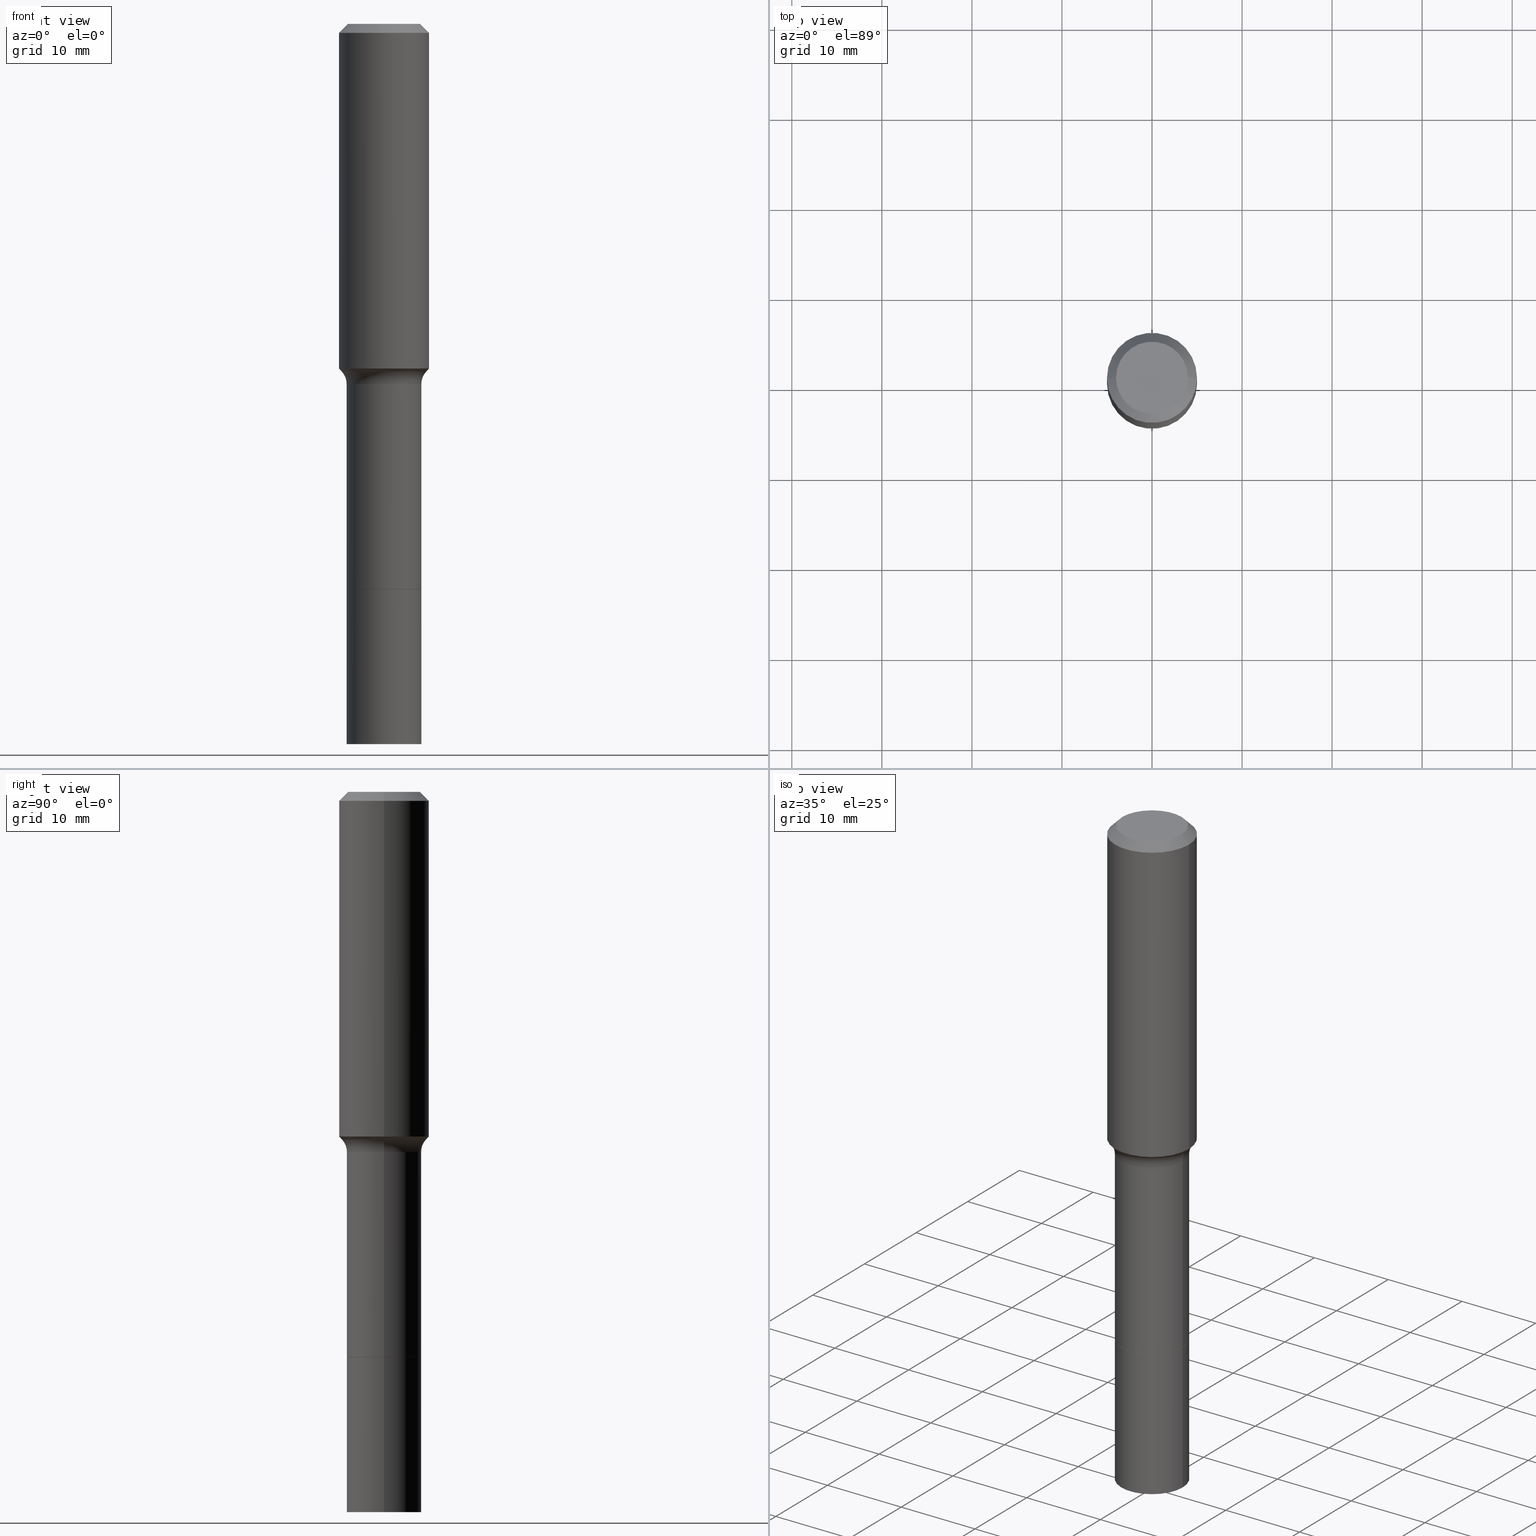
[diagram: canonical four-view strip — front | top / right | iso, engineering-drawing reading convention]
A machine part, canonical four-view strip (front | top / right | iso — engineering-drawing reading convention). The complete STEP part file that produces these views, byte-faithful:
ISO-10303-21;
HEADER;
FILE_DESCRIPTION (( 'STEP AP203' ),
    '1' );
FILE_NAME ('67130.STEP',
    '2025-04-01T15:28:40',
    ( '' ),
    ( '' ),
    'SwSTEP 2.0',
    'SolidWorks 2024',
    '' );
FILE_SCHEMA (( 'CONFIG_CONTROL_DESIGN' ));
ENDSEC;

DATA;
#1 = ORGANIZATION ( 'UNSPECIFIED', 'UNSPECIFIED', '' ) ;
#2 = DIRECTION ( 'NONE',  ( -2.445468806185136597E-29, 3.491481338843145583E-15, 1.000000000000000000 ) ) ;
#3 = PRODUCT_DEFINITION ( 'UNKNOWN', '', #8, #282 ) ;
#4 = DIRECTION ( 'NONE',  ( 1.000000000000000000, -6.982962677686264344E-15, 0.000000000000000000 ) ) ;
#5 = FACE_OUTER_BOUND ( 'NONE', #222, .T. ) ;
#6 = ORIENTED_EDGE ( 'NONE', *, *, #110, .T. ) ;
#7 = CLOSED_SHELL ( 'NONE', ( #353, #421, #197, #395, #267, #251, #262, #366, #128, #79, #61, #139, #226, #36 ) ) ;
#8 = PRODUCT_DEFINITION_FORMATION_WITH_SPECIFIED_SOURCE ( 'ANY', '', #337, .NOT_KNOWN. ) ;
#9 = CARTESIAN_POINT ( 'NONE',  ( -0.1633999999999999897, -5.903461936716274512E-15, -2.472100000000000186 ) ) ;
#10 = EDGE_LOOP ( 'NONE', ( #24, #100, #6, #247 ) ) ;
#11 = LINE ( 'NONE', #53, #236 ) ;
#12 = DIRECTION ( 'NONE',  ( 0.7071067811864267805, -2.468850131080992517E-15, 0.7071067811866682540 ) ) ;
#13 = CARTESIAN_POINT ( 'NONE',  ( 3.850635182219116347E-29, -5.497686516142417553E-15, -1.574600000000000222 ) ) ;
#14 = ORIENTED_EDGE ( 'NONE', *, *, #329, .F. ) ;
#15 = DIRECTION ( 'NONE',  ( 0.7071067811865453523, -7.319954787623248157E-15, -0.7071067811865496822 ) ) ;
#16 = ORIENTED_EDGE ( 'NONE', *, *, #429, .F. ) ;
#17 = CIRCLE ( 'NONE', #241, 0.1848917038704662730 ) ;
#18 = CARTESIAN_POINT ( 'NONE',  ( 9.627810689950945397E-31, -1.374596203102555315E-16, -0.03937000000000025896 ) ) ;
#19 = ORIENTED_EDGE ( 'NONE', *, *, #314, .F. ) ;
#20 = PERSON ( 'UNSPECIFIED', 'UNSPECIFIED', 'UNSPECIFIED', ('UNSPECIFIED'), ('UNSPECIFIED'), ('UNSPECIFIED') ) ;
#21 = EDGE_CURVE ( 'NONE', #69, #219, #351, .T. ) ;
#22 = APPROVAL_DATE_TIME ( #507, #244 ) ;
#23 = ORIENTED_EDGE ( 'NONE', *, *, #509, .T. ) ;
#24 = ORIENTED_EDGE ( 'NONE', *, *, #384, .F. ) ;
#25 = CIRCLE ( 'NONE', #317, 0.1633999999999998787 ) ;
#26 = SECURITY_CLASSIFICATION ( '', '', #423 ) ;
#27 = DIRECTION ( 'NONE',  ( 1.000000000000000000, -6.982962677686264344E-15, 0.000000000000000000 ) ) ;
#28 = ORIENTED_EDGE ( 'NONE', *, *, #476, .F. ) ;
#29 = DIRECTION ( 'NONE',  ( 1.000000000000000000, -6.982962677686266711E-15, 0.000000000000000000 ) ) ;
#30 = CIRCLE ( 'NONE', #377, 0.1968500000000000250 ) ;
#31 = LINE ( 'NONE', #270, #411 ) ;
#32 = AXIS2_PLACEMENT_3D ( 'NONE', #490, #130, #294 ) ;
#33 = DIRECTION ( 'NONE',  ( -2.445468806185136597E-29, 3.491481338843145583E-15, 1.000000000000000000 ) ) ;
#34 = CYLINDRICAL_SURFACE ( 'NONE', #223, 0.1968500000000001082 ) ;
#35 = CARTESIAN_POINT ( 'NONE',  ( 0.1633999999999999897, -9.772307119288075275E-15, -2.472100000000000186 ) ) ;
#36 = ADVANCED_FACE ( 'NONE', ( #298 ), #99, .T. ) ;
#37 = TOROIDAL_SURFACE ( 'NONE', #386, 0.2433999999999999220, 0.07999999999999998779 ) ;
#38 = CARTESIAN_POINT ( 'NONE',  ( 3.850635182219116347E-29, -5.497686516142417553E-15, -1.574600000000000222 ) ) ;
#39 = ORIENTED_EDGE ( 'NONE', *, *, #206, .T. ) ;
#40 = DIRECTION ( 'NONE',  ( 1.000000000000000000, -6.982962677686262766E-15, 0.000000000000000000 ) ) ;
#41 = VERTEX_POINT ( 'NONE', #422 ) ;
#42 = CARTESIAN_POINT ( 'NONE',  ( 0.1628999999999999893, -9.770561378618654560E-15, -2.472600000000000353 ) ) ;
#43 = DIRECTION ( 'NONE',  ( 1.000000000000000000, -6.982962677686265922E-15, 0.000000000000000000 ) ) ;
#44 = AXIS2_PLACEMENT_3D ( 'NONE', #382, #506, #467 ) ;
#45 = CARTESIAN_POINT ( 'NONE',  ( 0.1848917038704662730, -6.598283619901317980E-15, -1.520040131195000255 ) ) ;
#46 = LOCAL_TIME ( 11, 28, 40.00000000000000000, #469 ) ;
#47 = EDGE_CURVE ( 'NONE', #69, #426, #464, .T. ) ;
#48 = DIRECTION ( 'NONE',  ( 1.000000000000000000, -6.982962677686268288E-15, 4.883557194083114583E-29 ) ) ;
#49 = ORIENTED_EDGE ( 'NONE', *, *, #206, .F. ) ;
#50 = DIRECTION ( 'NONE',  ( -2.445468806185136597E-29, 3.491481338843145583E-15, 1.000000000000000000 ) ) ;
#51 = DIRECTION ( 'NONE',  ( 0.6819983600624961451, -2.208861293262451743E-15, 0.7313537016191726803 ) ) ;
#52 = ORIENTED_EDGE ( 'NONE', *, *, #87, .F. ) ;
#53 = CARTESIAN_POINT ( 'NONE',  ( -0.1848917038704662730, -3.993457181485356184E-15, -1.520040131195000255 ) ) ;
#54 = FACE_OUTER_BOUND ( 'NONE', #364, .T. ) ;
#55 = ORIENTED_EDGE ( 'NONE', *, *, #429, .T. ) ;
#56 = DIMENSIONAL_EXPONENTS ( 1.000000000000000000, 0.000000000000000000, 0.000000000000000000, 0.000000000000000000, 0.000000000000000000, 0.000000000000000000, 0.000000000000000000 ) ;
#57 = CC_DESIGN_PERSON_AND_ORGANIZATION_ASSIGNMENT ( #309, #347, ( #26 ) ) ;
#58 = CIRCLE ( 'NONE', #253, 0.07999999999999996003 ) ;
#59 = CALENDAR_DATE ( 2025, 1, 4 ) ;
#60 = ORIENTED_EDGE ( 'NONE', *, *, #513, .T. ) ;
#61 = ADVANCED_FACE ( 'NONE', ( #189 ), #124, .T. ) ;
#62 = SHAPE_DEFINITION_REPRESENTATION ( #381, #162 ) ;
#63 = ORIENTED_EDGE ( 'NONE', *, *, #72, .F. ) ;
#64 = EDGE_CURVE ( 'NONE', #209, #143, #324, .T. ) ;
#65 = COORDINATED_UNIVERSAL_TIME_OFFSET ( 5, 0, .BEHIND. ) ;
#66 = ORIENTED_EDGE ( 'NONE', *, *, #154, .T. ) ;
#67 = APPROVAL_PERSON_ORGANIZATION ( #465, #244, #101 ) ;
#68 = PERSON_AND_ORGANIZATION_ROLE ( 'design_owner' ) ;
#69 = VERTEX_POINT ( 'NONE', #35 ) ;
#70 = PLANE ( 'NONE',  #394 ) ;
#71 = DIRECTION ( 'NONE',  ( -2.445468806185136597E-29, 3.491481338843145583E-15, 1.000000000000000000 ) ) ;
#72 = EDGE_CURVE ( 'NONE', #508, #172, #439, .T. ) ;
#73 = FACE_OUTER_BOUND ( 'NONE', #228, .T. ) ;
#74 = DIRECTION ( 'NONE',  ( -2.445468806185136597E-29, 3.491481338843145583E-15, 1.000000000000000000 ) ) ;
#75 = CARTESIAN_POINT ( 'NONE',  ( 0.1633999999999998787, -6.638702617676352518E-15, -1.574600000000000222 ) ) ;
#76 = EDGE_CURVE ( 'NONE', #41, #496, #292, .T. ) ;
#77 = FACE_OUTER_BOUND ( 'NONE', #460, .T. ) ;
#78 = CALENDAR_DATE ( 2025, 1, 4 ) ;
#79 = ADVANCED_FACE ( 'NONE', ( #77 ), #150, .T. ) ;
#80 = DIRECTION ( 'NONE',  ( 1.000000000000000000, -6.982962677686265922E-15, 0.000000000000000000 ) ) ;
#81 = CLOSED_SHELL ( 'NONE', ( #157, #415, #305, #179 ) ) ;
#82 = CIRCLE ( 'NONE', #379, 0.07999999999999996003 ) ;
#83 = DIRECTION ( 'NONE',  ( -2.445468806185136597E-29, 3.491481338843145583E-15, 1.000000000000000000 ) ) ;
#84 = VERTEX_POINT ( 'NONE', #114 ) ;
#85 = CARTESIAN_POINT ( 'NONE',  ( 0.2433999999999999220, -7.197339631891254170E-15, -1.574600000000000222 ) ) ;
#86 = VERTEX_POINT ( 'NONE', #443 ) ;
#87 = EDGE_CURVE ( 'NONE', #279, #406, #30, .T. ) ;
#88 = DIRECTION ( 'NONE',  ( -6.982962677686266711E-15, -1.000000000000000000, 3.491481338843145583E-15 ) ) ;
#89 = APPROVAL_PERSON_ORGANIZATION ( #190, #433, #284 ) ;
#90 = CC_DESIGN_SECURITY_CLASSIFICATION ( #26, ( #8 ) ) ;
#91 = DIRECTION ( 'NONE',  ( 1.000000000000000000, -6.982962677686266711E-15, 4.876176775795935793E-29 ) ) ;
#92 = CARTESIAN_POINT ( 'NONE',  ( -0.1628999999999999893, -7.472913414696247881E-15, -2.472600000000000353 ) ) ;
#93 = CARTESIAN_POINT ( 'NONE',  ( 6.046666170173369648E-29, -8.633036758423563392E-15, -2.472600000000000353 ) ) ;
#94 = DIRECTION ( 'NONE',  ( -1.000000000000000000, 7.105427357601001859E-15, 0.000000000000000000 ) ) ;
#95 = CARTESIAN_POINT ( 'NONE',  ( 6.046666170173369648E-29, -8.633036758423563392E-15, -2.472600000000000353 ) ) ;
#96 = DIRECTION ( 'NONE',  ( -2.445468806185136597E-29, 3.491481338843145583E-15, 1.000000000000000000 ) ) ;
#97 = DIRECTION ( 'NONE',  ( -2.445468806185136597E-29, 3.491481338843145583E-15, 1.000000000000000000 ) ) ;
#98 = CARTESIAN_POINT ( 'NONE',  ( 0.1634000000000001007, -9.774052859957499145E-15, -2.472600000000000353 ) ) ;
#99 = CONICAL_SURFACE ( 'NONE', #301, 0.1628999999999999893, 0.7853981633972775267 ) ;
#100 = ORIENTED_EDGE ( 'NONE', *, *, #290, .F. ) ;
#101 = APPROVAL_ROLE ( '' ) ;
#102 = EDGE_LOOP ( 'NONE', ( #332, #60, #145, #349 ) ) ;
#103 = COORDINATED_UNIVERSAL_TIME_OFFSET ( 5, 0, .BEHIND. ) ;
#104 = EDGE_LOOP ( 'NONE', ( #340, #257, #330, #383 ) ) ;
#105 = AXIS2_PLACEMENT_3D ( 'NONE', #438, #33, #479 ) ;
#106 = DATE_AND_TIME ( #59, #318 ) ;
#107 = AXIS2_PLACEMENT_3D ( 'NONE', #160, #50, #462 ) ;
#108 = APPROVAL_DATE_TIME ( #240, #175 ) ;
#109 = CARTESIAN_POINT ( 'NONE',  ( 3.717210724986936016E-29, -5.307191752360030282E-15, -1.520040131195000255 ) ) ;
#110 = EDGE_CURVE ( 'NONE', #172, #406, #512, .T. ) ;
#111 = DIRECTION ( 'NONE',  ( -2.445468806185136597E-29, 3.491481338843145583E-15, 1.000000000000000000 ) ) ;
#112 = CARTESIAN_POINT ( 'NONE',  ( 0.1968500000000001082, -1.374596203102542397E-15, 9.598753983154305062E-30 ) ) ;
#113 =( NAMED_UNIT ( * ) PLANE_ANGLE_UNIT ( ) SI_UNIT ( $, .RADIAN. ) );
#114 = CARTESIAN_POINT ( 'NONE',  ( -0.1633999999999998787, -5.903461936716276090E-15, -1.574600000000000222 ) ) ;
#115 = APPLICATION_CONTEXT ( 'configuration controlled 3d designs of mechanical parts and assemblies' ) ;
#116 = CIRCLE ( 'NONE', #167, 0.1968500000000001915 ) ;
#117 = CONICAL_SURFACE ( 'NONE', #412, 0.1848917038704662730, 0.7504915783575585309 ) ;
#118 = DIRECTION ( 'NONE',  ( 1.000000000000000000, -6.982962677686268288E-15, 0.000000000000000000 ) ) ;
#119 = AXIS2_PLACEMENT_3D ( 'NONE', #402, #451, #4 ) ;
#120 = FACE_OUTER_BOUND ( 'NONE', #135, .T. ) ;
#121 = DIRECTION ( 'NONE',  ( -2.445468806185136597E-29, 3.491481338843145583E-15, 1.000000000000000000 ) ) ;
#122 = PERSON_AND_ORGANIZATION_ROLE ( 'creator' ) ;
#123 = DIRECTION ( 'NONE',  ( 1.000000000000000000, -6.982962677686265922E-15, 4.876176775795935793E-29 ) ) ;
#124 = CONICAL_SURFACE ( 'NONE', #424, 0.1968500000000000250, 0.7853981633974452814 ) ;
#125 = ORIENTED_EDGE ( 'NONE', *, *, #87, .T. ) ;
#126 = VECTOR ( 'NONE', #51, 39.37007874015748143 ) ;
#127 = CARTESIAN_POINT ( 'NONE',  ( 0.000000000000000000, 0.000000000000000000, 0.000000000000000000 ) ) ;
#128 = ADVANCED_FACE ( 'NONE', ( #73 ), #229, .T. ) ;
#129 = ORIENTED_EDGE ( 'NONE', *, *, #468, .F. ) ;
#130 = DIRECTION ( 'NONE',  ( -2.445468806185136597E-29, 3.491481338843145583E-15, 1.000000000000000000 ) ) ;
#131 = FACE_OUTER_BOUND ( 'NONE', #149, .T. ) ;
#132 = EDGE_LOOP ( 'NONE', ( #66, #39, #52, #16 ) ) ;
#133 = DIRECTION ( 'NONE',  ( 1.000000000000000000, -6.982962677686264344E-15, 0.000000000000000000 ) ) ;
#134 = CARTESIAN_POINT ( 'NONE',  ( 0.1628999999999999893, -9.770561378618654560E-15, -2.472600000000000353 ) ) ;
#135 = EDGE_LOOP ( 'NONE', ( #191, #466 ) ) ;
#136 = VECTOR ( 'NONE', #331, 39.37007874015748143 ) ;
#137 = AXIS2_PLACEMENT_3D ( 'NONE', #18, #218, #339 ) ;
#138 = LINE ( 'NONE', #98, #487 ) ;
#139 = ADVANCED_FACE ( 'NONE', ( #120 ), #70, .F. ) ;
#140 = CARTESIAN_POINT ( 'NONE',  ( 3.717210724986936016E-29, -5.307191752360030282E-15, -1.520040131195000255 ) ) ;
#141 = ORIENTED_EDGE ( 'NONE', *, *, #185, .F. ) ;
#142 = CARTESIAN_POINT ( 'NONE',  ( -0.1968500000000000250, -1.301235451839561360E-15, -0.03937000000000025896 ) ) ;
#143 = VERTEX_POINT ( 'NONE', #238 ) ;
#144 = CARTESIAN_POINT ( 'NONE',  ( 3.717210724986936016E-29, -5.307191752360030282E-15, -1.520040131195000255 ) ) ;
#145 = ORIENTED_EDGE ( 'NONE', *, *, #154, .F. ) ;
#146 = AXIS2_PLACEMENT_3D ( 'NONE', #502, #97, #29 ) ;
#147 = AXIS2_PLACEMENT_3D ( 'NONE', #453, #163, #369 ) ;
#148 = DIRECTION ( 'NONE',  ( -2.445468806185136597E-29, 3.491481338843145583E-15, 1.000000000000000000 ) ) ;
#149 = EDGE_LOOP ( 'NONE', ( #414, #404, #266, #141 ) ) ;
#150 = CYLINDRICAL_SURFACE ( 'NONE', #263, 0.1968500000000001082 ) ;
#151 = AXIS2_PLACEMENT_3D ( 'NONE', #516, #350, #155 ) ;
#152 = AXIS2_PLACEMENT_3D ( 'NONE', #144, #96, #299 ) ;
#153 = DIRECTION ( 'NONE',  ( 1.000000000000000000, -6.982962677686265922E-15, 0.000000000000000000 ) ) ;
#154 = EDGE_CURVE ( 'NONE', #143, #209, #116, .T. ) ;
#155 = DIRECTION ( 'NONE',  ( 1.000000000000000000, -6.982962677686261189E-15, 0.000000000000000000 ) ) ;
#156 = CARTESIAN_POINT ( 'NONE',  ( 7.702248551960706711E-29, -1.099676962482037231E-14, -3.149600000000000399 ) ) ;
#157 = ADVANCED_FACE ( 'NONE', ( #398 ), #472, .T. ) ;
#158 = AXIS2_PLACEMENT_3D ( 'NONE', #207, #363, #48 ) ;
#159 = LINE ( 'NONE', #319, #136 ) ;
#160 = CARTESIAN_POINT ( 'NONE',  ( 6.046666170173369648E-29, -8.633036758423563392E-15, -2.472600000000000353 ) ) ;
#161 = CYLINDRICAL_SURFACE ( 'NONE', #188, 0.1634000000000001007 ) ;
#162 = ADVANCED_BREP_SHAPE_REPRESENTATION ( '67130', ( #481, #483, #505 ), #335 ) ;
#163 = DIRECTION ( 'NONE',  ( -2.445468806185136597E-29, 3.491481338843145583E-15, 1.000000000000000000 ) ) ;
#164 = EDGE_LOOP ( 'NONE', ( #19, #343, #249, #186 ) ) ;
#165 = EDGE_CURVE ( 'NONE', #219, #84, #441, .T. ) ;
#166 = DIRECTION ( 'NONE',  ( -2.438088387897960049E-29, 3.491481338843145188E-15, 1.000000000000000000 ) ) ;
#167 = AXIS2_PLACEMENT_3D ( 'NONE', #239, #437, #517 ) ;
#168 = ORIENTED_EDGE ( 'NONE', *, *, #173, .T. ) ;
#169 = CIRCLE ( 'NONE', #312, 0.1633999999999999897 ) ;
#170 = CARTESIAN_POINT ( 'NONE',  ( 6.045443435770276846E-29, -8.631291017754141099E-15, -2.472100000000000186 ) ) ;
#171 = PLANE ( 'NONE',  #178 ) ;
#172 = VERTEX_POINT ( 'NONE', #518 ) ;
#173 = EDGE_CURVE ( 'NONE', #496, #268, #31, .T. ) ;
#174 = DIRECTION ( 'NONE',  ( -2.445468806185136877E-29, 3.491481338843145188E-15, 1.000000000000000000 ) ) ;
#175 = APPROVAL ( #203, 'UNSPECIFIED' ) ;
#176 = DIRECTION ( 'NONE',  ( 7.105427357601001859E-15, 1.000000000000000000, -3.491481338843145583E-15 ) ) ;
#177 = ORIENTED_EDGE ( 'NONE', *, *, #504, .T. ) ;
#178 = AXIS2_PLACEMENT_3D ( 'NONE', #449, #166, #123 ) ;
#179 = ADVANCED_FACE ( 'NONE', ( #202 ), #192, .F. ) ;
#180 = DIRECTION ( 'NONE',  ( -1.000000000000000000, 6.982962677686265922E-15, -4.876176775795935793E-29 ) ) ;
#181 = EDGE_LOOP ( 'NONE', ( #23, #177, #288, #323 ) ) ;
#182 = UNCERTAINTY_MEASURE_WITH_UNIT (LENGTH_MEASURE( 1.000000000000000082E-05 ), #220, 'distance_accuracy_value', 'NONE');
#183 = ORIENTED_EDGE ( 'NONE', *, *, #165, .T. ) ;
#184 = DATE_TIME_ROLE ( 'classification_date' ) ;
#185 = EDGE_CURVE ( 'NONE', #268, #227, #475, .T. ) ;
#186 = ORIENTED_EDGE ( 'NONE', *, *, #358, .F. ) ;
#187 = AXIS2_PLACEMENT_3D ( 'NONE', #237, #474, #196 ) ;
#188 = AXIS2_PLACEMENT_3D ( 'NONE', #286, #328, #361 ) ;
#189 = FACE_OUTER_BOUND ( 'NONE', #10, .T. ) ;
#190 = PERSON_AND_ORGANIZATION ( #20, #1 ) ;
#191 = ORIENTED_EDGE ( 'NONE', *, *, #290, .T. ) ;
#192 = PLANE ( 'NONE',  #187 ) ;
#193 = EDGE_CURVE ( 'NONE', #426, #84, #25, .T. ) ;
#194 = CIRCLE ( 'NONE', #152, 0.1848917038704662730 ) ;
#195 = DATE_TIME_ROLE ( 'creation_date' ) ;
#196 = DIRECTION ( 'NONE',  ( -1.000000000000000000, 6.982962677686265922E-15, -4.876176775795935793E-29 ) ) ;
#197 = ADVANCED_FACE ( 'NONE', ( #397 ), #34, .T. ) ;
#198 = CARTESIAN_POINT ( 'NONE',  ( 0.000000000000000000, 0.000000000000000000, 0.000000000000000000 ) ) ;
#199 = DIRECTION ( 'NONE',  ( 1.000000000000000000, -6.982962677686266711E-15, 4.876176775795935793E-29 ) ) ;
#200 = PRODUCT_RELATED_PRODUCT_CATEGORY ( 'detail', '', ( #337 ) ) ;
#201 = CIRCLE ( 'NONE', #32, 0.1628999999999999893 ) ;
#202 = FACE_OUTER_BOUND ( 'NONE', #417, .T. ) ;
#203 = APPROVAL_STATUS ( 'not_yet_approved' ) ;
#204 = DIRECTION ( 'NONE',  ( 1.000000000000000000, -6.982962677686266711E-15, 4.876176775795935793E-29 ) ) ;
#205 = ORIENTED_EDGE ( 'NONE', *, *, #375, .F. ) ;
#206 = EDGE_CURVE ( 'NONE', #209, #406, #159, .T. ) ;
#207 = CARTESIAN_POINT ( 'NONE',  ( 3.850635182219116347E-29, -5.497686516142417553E-15, -1.574600000000000222 ) ) ;
#208 = APPLICATION_PROTOCOL_DEFINITION ( 'international standard', 'config_control_design', 1994, #115 ) ;
#209 = VERTEX_POINT ( 'NONE', #372 ) ;
#210 = LINE ( 'NONE', #410, #269 ) ;
#211 = DIRECTION ( 'NONE',  ( -2.445468806185136597E-29, 3.491481338843145583E-15, 1.000000000000000000 ) ) ;
#212 = ORIENTED_EDGE ( 'NONE', *, *, #504, .F. ) ;
#213 = CIRCLE ( 'NONE', #359, 0.1968500000000000250 ) ;
#214 = CARTESIAN_POINT ( 'NONE',  ( 0.1574800000000000089, -1.284169937930321189E-15, 3.855188123724205385E-18 ) ) ;
#215 = DIRECTION ( 'NONE',  ( -2.445468806185136597E-29, 3.491481338843145583E-15, 1.000000000000000000 ) ) ;
#216 = ORIENTED_EDGE ( 'NONE', *, *, #454, .T. ) ;
#217 = DIRECTION ( 'NONE',  ( -0.6819983600624961451, 7.399397606724278688E-15, 0.7313537016191726803 ) ) ;
#218 = DIRECTION ( 'NONE',  ( 2.445468806185136597E-29, -3.491481338843145583E-15, -1.000000000000000000 ) ) ;
#219 = VERTEX_POINT ( 'NONE', #9 ) ;
#220 =( CONVERSION_BASED_UNIT ( 'INCH', #419 ) LENGTH_UNIT ( ) NAMED_UNIT ( #56 ) );
#221 = CARTESIAN_POINT ( 'NONE',  ( 0.1968500000000000250, -1.487948651171581601E-15, -0.03937000000000025896 ) ) ;
#222 = EDGE_LOOP ( 'NONE', ( #389, #362 ) ) ;
#223 = AXIS2_PLACEMENT_3D ( 'NONE', #198, #74, #199 ) ;
#224 = LOCAL_TIME ( 11, 28, 40.00000000000000000, #348 ) ;
#225 = ORIENTED_EDGE ( 'NONE', *, *, #513, .F. ) ;
#226 = ADVANCED_FACE ( 'NONE', ( #5 ), #171, .F. ) ;
#227 = VERTEX_POINT ( 'NONE', #482 ) ;
#228 = EDGE_LOOP ( 'NONE', ( #225, #450, #308, #260 ) ) ;
#229 = CONICAL_SURFACE ( 'NONE', #447, 0.1848917038704662730, 0.7504915783575585309 ) ;
#230 = CIRCLE ( 'NONE', #401, 0.1633999999999998787 ) ;
#231 = EDGE_CURVE ( 'NONE', #373, #69, #495, .T. ) ;
#232 = ORIENTED_EDGE ( 'NONE', *, *, #110, .F. ) ;
#233 = DIRECTION ( 'NONE',  ( 1.000000000000000000, -6.982962677686268288E-15, 0.000000000000000000 ) ) ;
#234 = CALENDAR_DATE ( 2025, 1, 4 ) ;
#235 = CARTESIAN_POINT ( 'NONE',  ( -0.1633999999999999619, 1.161026830232003433E-15, -8.037539937476514246E-30 ) ) ;
#236 = VECTOR ( 'NONE', #217, 39.37007874015748143 ) ;
#237 = CARTESIAN_POINT ( 'NONE',  ( 6.046666170173369648E-29, -8.633036758423563392E-15, -2.472600000000000353 ) ) ;
#238 = CARTESIAN_POINT ( 'NONE',  ( 0.1968500000000001915, -6.637014237158927084E-15, -1.507216428600478775 ) ) ;
#239 = CARTESIAN_POINT ( 'NONE',  ( 3.685850760312237966E-29, -5.262418034056383898E-15, -1.507216428600478775 ) ) ;
#240 = DATE_AND_TIME ( #78, #46 ) ;
#241 = AXIS2_PLACEMENT_3D ( 'NONE', #245, #320, #445 ) ;
#242 = DIRECTION ( 'NONE',  ( 1.000000000000000000, -6.982962677686268288E-15, 4.883557194083114583E-29 ) ) ;
#243 = EDGE_LOOP ( 'NONE', ( #385, #492 ) ) ;
#244 = APPROVAL ( #387, 'UNSPECIFIED' ) ;
#245 = CARTESIAN_POINT ( 'NONE',  ( 3.717210724986936016E-29, -5.307191752360030282E-15, -1.520040131195000255 ) ) ;
#246 =( NAMED_UNIT ( * ) SI_UNIT ( $, .STERADIAN. ) SOLID_ANGLE_UNIT ( ) );
#247 = ORIENTED_EDGE ( 'NONE', *, *, #329, .T. ) ;
#248 = DIRECTION ( 'NONE',  ( -2.445468806185136597E-29, 3.491481338843145583E-15, 1.000000000000000000 ) ) ;
#249 = ORIENTED_EDGE ( 'NONE', *, *, #442, .T. ) ;
#250 = DIRECTION ( 'NONE',  ( -2.445468806185136597E-29, 3.491481338843145583E-15, 1.000000000000000000 ) ) ;
#251 = ADVANCED_FACE ( 'NONE', ( #291 ), #289, .T. ) ;
#252 = CARTESIAN_POINT ( 'NONE',  ( 0.000000000000000000, 0.000000000000000000, 0.000000000000000000 ) ) ;
#253 = AXIS2_PLACEMENT_3D ( 'NONE', #85, #88, #40 ) ;
#254 = ORIENTED_EDGE ( 'NONE', *, *, #185, .T. ) ;
#255 = CC_DESIGN_APPROVAL ( #244, ( #26 ) ) ;
#256 = FACE_OUTER_BOUND ( 'NONE', #164, .T. ) ;
#257 = ORIENTED_EDGE ( 'NONE', *, *, #375, .T. ) ;
#258 = CARTESIAN_POINT ( 'NONE',  ( -0.1634000000000001840, -8.653876361389961065E-15, -3.149600000000000399 ) ) ;
#259 = FACE_OUTER_BOUND ( 'NONE', #243, .T. ) ;
#260 = ORIENTED_EDGE ( 'NONE', *, *, #64, .F. ) ;
#261 = ORIENTED_EDGE ( 'NONE', *, *, #358, .T. ) ;
#262 = ADVANCED_FACE ( 'NONE', ( #409 ), #491, .T. ) ;
#263 = AXIS2_PLACEMENT_3D ( 'NONE', #275, #111, #355 ) ;
#264 = CIRCLE ( 'NONE', #448, 0.1628999999999999893 ) ;
#265 = DIRECTION ( 'NONE',  ( -2.445468806185136877E-29, 3.491481338843145188E-15, 1.000000000000000000 ) ) ;
#266 = ORIENTED_EDGE ( 'NONE', *, *, #476, .T. ) ;
#267 = ADVANCED_FACE ( 'NONE', ( #256 ), #37, .F. ) ;
#268 = VERTEX_POINT ( 'NONE', #326 ) ;
#269 = VECTOR ( 'NONE', #365, 39.37007874015748143 ) ;
#270 = CARTESIAN_POINT ( 'NONE',  ( -0.1634000000000001007, -7.472009928191558183E-15, -2.472600000000000353 ) ) ;
#271 = DIRECTION ( 'NONE',  ( -2.445468806185136597E-29, 3.491481338843145583E-15, 1.000000000000000000 ) ) ;
#272 = CARTESIAN_POINT ( 'NONE',  ( 3.850635182219116347E-29, -5.497686516142417553E-15, -1.574600000000000222 ) ) ;
#273 = TOROIDAL_SURFACE ( 'NONE', #158, 0.2433999999999999220, 0.07999999999999998779 ) ;
#274 = DIRECTION ( 'NONE',  ( -2.445468806185136597E-29, 3.491481338843145583E-15, 1.000000000000000000 ) ) ;
#275 = CARTESIAN_POINT ( 'NONE',  ( 0.000000000000000000, 0.000000000000000000, 0.000000000000000000 ) ) ;
#276 = LINE ( 'NONE', #112, #425 ) ;
#277 = CC_DESIGN_PERSON_AND_ORGANIZATION_ASSIGNMENT ( #307, #68, ( #337 ) ) ;
#278 = CARTESIAN_POINT ( 'NONE',  ( -9.427742298522567634E-47, 1.346031739168368355E-32, 3.855188123715870730E-18 ) ) ;
#279 = VERTEX_POINT ( 'NONE', #488 ) ;
#280 = EDGE_CURVE ( 'NONE', #485, #143, #360, .T. ) ;
#281 = DIRECTION ( 'NONE',  ( 1.000000000000000000, -6.982962677686265922E-15, 4.876223630392693006E-29 ) ) ;
#282 = DESIGN_CONTEXT ( 'detailed design', #356, 'design' ) ;
#283 = EDGE_LOOP ( 'NONE', ( #212, #341, #300, #205 ) ) ;
#284 = APPROVAL_ROLE ( '' ) ;
#285 = CC_DESIGN_DATE_AND_TIME_ASSIGNMENT ( #390, #195, ( #3 ) ) ;
#286 = CARTESIAN_POINT ( 'NONE',  ( 6.046666170173369648E-29, -8.633036758423563392E-15, -2.472600000000000353 ) ) ;
#287 = DIRECTION ( 'NONE',  ( 1.000000000000000000, 0.000000000000000000, 0.000000000000000000 ) ) ;
#288 = ORIENTED_EDGE ( 'NONE', *, *, #21, .F. ) ;
#289 = CYLINDRICAL_SURFACE ( 'NONE', #399, 0.1633999999999999619 ) ;
#290 = EDGE_CURVE ( 'NONE', #172, #508, #471, .T. ) ;
#291 = FACE_OUTER_BOUND ( 'NONE', #452, .T. ) ;
#292 = CIRCLE ( 'NONE', #486, 0.1634000000000001840 ) ;
#293 = CC_DESIGN_APPROVAL ( #433, ( #3 ) ) ;
#294 = DIRECTION ( 'NONE',  ( 1.000000000000000000, -6.982962677686264344E-15, 0.000000000000000000 ) ) ;
#295 = DIRECTION ( 'NONE',  ( -2.445468806185136597E-29, 3.491481338843145583E-15, 1.000000000000000000 ) ) ;
#296 = ORIENTED_EDGE ( 'NONE', *, *, #454, .F. ) ;
#297 = PLANE ( 'NONE',  #325 ) ;
#298 = FACE_OUTER_BOUND ( 'NONE', #283, .T. ) ;
#299 = DIRECTION ( 'NONE',  ( 1.000000000000000000, -6.982962677686268288E-15, 0.000000000000000000 ) ) ;
#300 = ORIENTED_EDGE ( 'NONE', *, *, #231, .T. ) ;
#301 = AXIS2_PLACEMENT_3D ( 'NONE', #95, #148, #27 ) ;
#302 = CIRCLE ( 'NONE', #119, 0.1634000000000001840 ) ;
#303 = PERSON_AND_ORGANIZATION_ROLE ( 'design_supplier' ) ;
#304 = CARTESIAN_POINT ( 'NONE',  ( 0.1633999999999999619, -1.141016101533935753E-15, 7.967672851650557527E-30 ) ) ;
#305 = ADVANCED_FACE ( 'NONE', ( #131 ), #161, .T. ) ;
#306 = CC_DESIGN_DATE_AND_TIME_ASSIGNMENT ( #106, #184, ( #26 ) ) ;
#307 = PERSON_AND_ORGANIZATION ( #20, #1 ) ;
#308 = ORIENTED_EDGE ( 'NONE', *, *, #280, .T. ) ;
#309 = PERSON_AND_ORGANIZATION ( #20, #1 ) ;
#310 = PERSON_AND_ORGANIZATION ( #20, #1 ) ;
#311 = DIRECTION ( 'NONE',  ( -1.000000000000000000, 6.982962677686265922E-15, -4.876176775795935793E-29 ) ) ;
#312 = AXIS2_PLACEMENT_3D ( 'NONE', #170, #215, #374 ) ;
#313 = DIRECTION ( 'NONE',  ( -0.7071067811865453523, 2.468850131082234184E-15, -0.7071067811865496822 ) ) ;
#314 = EDGE_CURVE ( 'NONE', #86, #485, #17, .T. ) ;
#315 = DIRECTION ( 'NONE',  ( 1.000000000000000000, -6.982962677686265922E-15, 0.000000000000000000 ) ) ;
#316 = DIRECTION ( 'NONE',  ( 1.000000000000000000, -6.982962677686264344E-15, 0.000000000000000000 ) ) ;
#317 = AXIS2_PLACEMENT_3D ( 'NONE', #272, #274, #315 ) ;
#318 = LOCAL_TIME ( 11, 28, 40.00000000000000000, #103 ) ;
#319 = CARTESIAN_POINT ( 'NONE',  ( -0.1968500000000001082, 1.398703375343757985E-15, -9.682923725166787881E-30 ) ) ;
#320 = DIRECTION ( 'NONE',  ( -2.445468806185136597E-29, 3.491481338843145583E-15, 1.000000000000000000 ) ) ;
#321 = PERSON_AND_ORGANIZATION_ROLE ( 'creator' ) ;
#322 = FACE_OUTER_BOUND ( 'NONE', #446, .T. ) ;
#323 = ORIENTED_EDGE ( 'NONE', *, *, #231, .F. ) ;
#324 = CIRCLE ( 'NONE', #146, 0.1968500000000001915 ) ;
#325 = AXIS2_PLACEMENT_3D ( 'NONE', #420, #376, #180 ) ;
#326 = CARTESIAN_POINT ( 'NONE',  ( -0.1633999999999999897, -8.653876361389962642E-15, -2.472600000000000353 ) ) ;
#327 = ORIENTED_EDGE ( 'NONE', *, *, #76, .T. ) ;
#328 = DIRECTION ( 'NONE',  ( -2.445468806185136597E-29, 3.491481338843145583E-15, 1.000000000000000000 ) ) ;
#329 = EDGE_CURVE ( 'NONE', #406, #279, #213, .T. ) ;
#330 = ORIENTED_EDGE ( 'NONE', *, *, #47, .T. ) ;
#331 = DIRECTION ( 'NONE',  ( -2.445468806185136877E-29, 3.491481338843145188E-15, 1.000000000000000000 ) ) ;
#332 = ORIENTED_EDGE ( 'NONE', *, *, #468, .T. ) ;
#333 = FACE_OUTER_BOUND ( 'NONE', #102, .T. ) ;
#334 = AXIS2_PLACEMENT_3D ( 'NONE', #357, #470, #233 ) ;
#335 =( GEOMETRIC_REPRESENTATION_CONTEXT ( 3 ) GLOBAL_UNCERTAINTY_ASSIGNED_CONTEXT ( ( #182 ) ) GLOBAL_UNIT_ASSIGNED_CONTEXT ( ( #220, #113, #246 ) ) REPRESENTATION_CONTEXT ( 'NONE', 'WORKASPACE' ) );
#336 = ORIENTED_EDGE ( 'NONE', *, *, #21, .T. ) ;
#337 = PRODUCT ( '67130', '67130', '', ( #405 ) ) ;
#338 = CC_DESIGN_PERSON_AND_ORGANIZATION_ASSIGNMENT ( #436, #321, ( #3 ) ) ;
#339 = DIRECTION ( 'NONE',  ( -1.000000000000000000, 6.982962677686265922E-15, 0.000000000000000000 ) ) ;
#340 = ORIENTED_EDGE ( 'NONE', *, *, #165, .F. ) ;
#341 = ORIENTED_EDGE ( 'NONE', *, *, #493, .T. ) ;
#342 = EDGE_CURVE ( 'NONE', #496, #41, #302, .T. ) ;
#343 = ORIENTED_EDGE ( 'NONE', *, *, #392, .T. ) ;
#344 = VECTOR ( 'NONE', #393, 39.37007874015748143 ) ;
#345 = AXIS2_PLACEMENT_3D ( 'NONE', #252, #248, #91 ) ;
#346 = DIRECTION ( 'NONE',  ( -1.000000000000000000, 6.982962677686265922E-15, 0.000000000000000000 ) ) ;
#347 = PERSON_AND_ORGANIZATION_ROLE ( 'classification_officer' ) ;
#348 = COORDINATED_UNIVERSAL_TIME_OFFSET ( 5, 0, .BEHIND. ) ;
#349 = ORIENTED_EDGE ( 'NONE', *, *, #280, .F. ) ;
#350 = DIRECTION ( 'NONE',  ( -2.445468806185136597E-29, 3.491481338843145583E-15, 1.000000000000000000 ) ) ;
#351 = CIRCLE ( 'NONE', #44, 0.1633999999999999897 ) ;
#352 = VECTOR ( 'NONE', #15, 39.37007874015748143 ) ;
#353 = ADVANCED_FACE ( 'NONE', ( #413 ), #456, .T. ) ;
#354 = CARTESIAN_POINT ( 'NONE',  ( 9.627810689950945397E-31, -1.374596203102555315E-16, -0.03937000000000025896 ) ) ;
#355 = DIRECTION ( 'NONE',  ( 1.000000000000000000, -6.982962677686266711E-15, 4.876176775795935793E-29 ) ) ;
#356 = APPLICATION_CONTEXT ( 'configuration controlled 3d designs of mechanical parts and assemblies' ) ;
#357 = CARTESIAN_POINT ( 'NONE',  ( 6.046666170173369648E-29, -8.633036758423563392E-15, -2.472600000000000353 ) ) ;
#358 = EDGE_CURVE ( 'NONE', #485, #426, #58, .T. ) ;
#359 = AXIS2_PLACEMENT_3D ( 'NONE', #484, #211, #80 ) ;
#360 = LINE ( 'NONE', #416, #126 ) ;
#361 = DIRECTION ( 'NONE',  ( 1.000000000000000000, -6.982962677686268288E-15, 0.000000000000000000 ) ) ;
#362 = ORIENTED_EDGE ( 'NONE', *, *, #493, .F. ) ;
#363 = DIRECTION ( 'NONE',  ( -2.445468806185136597E-29, 3.491481338843145583E-15, 1.000000000000000000 ) ) ;
#364 = EDGE_LOOP ( 'NONE', ( #63, #428, #125, #232 ) ) ;
#365 = DIRECTION ( 'NONE',  ( -0.7071067811864267805, 7.493145998869918709E-15, 0.7071067811866682540 ) ) ;
#366 = ADVANCED_FACE ( 'NONE', ( #322 ), #273, .F. ) ;
#367 = VECTOR ( 'NONE', #265, 39.37007874015748143 ) ;
#368 = CIRCLE ( 'NONE', #107, 0.1633999999999999897 ) ;
#369 = DIRECTION ( 'NONE',  ( 1.000000000000000000, -6.982962677686264344E-15, 0.000000000000000000 ) ) ;
#370 = DIRECTION ( 'NONE',  ( 0.000000000000000000, 0.000000000000000000, 1.000000000000000000 ) ) ;
#371 = ORIENTED_EDGE ( 'NONE', *, *, #47, .F. ) ;
#372 = CARTESIAN_POINT ( 'NONE',  ( -0.1968500000000001915, -3.863714658712625321E-15, -1.507216428600478775 ) ) ;
#373 = VERTEX_POINT ( 'NONE', #42 ) ;
#374 = DIRECTION ( 'NONE',  ( 1.000000000000000000, -6.982962677686261189E-15, 0.000000000000000000 ) ) ;
#375 = EDGE_CURVE ( 'NONE', #219, #69, #169, .T. ) ;
#376 = DIRECTION ( 'NONE',  ( 2.438088387897960049E-29, -3.491481338843145188E-15, -1.000000000000000000 ) ) ;
#377 = AXIS2_PLACEMENT_3D ( 'NONE', #354, #271, #153 ) ;
#378 = APPROVAL_STATUS ( 'not_yet_approved' ) ;
#379 = AXIS2_PLACEMENT_3D ( 'NONE', #501, #176, #94 ) ;
#380 = DIRECTION ( 'NONE',  ( 2.445468806185136597E-29, -3.491481338843145583E-15, -1.000000000000000000 ) ) ;
#381 = PRODUCT_DEFINITION_SHAPE ( 'NONE', 'NONE',  #3 ) ;
#382 = CARTESIAN_POINT ( 'NONE',  ( 6.045443435770276846E-29, -8.631291017754141099E-15, -2.472100000000000186 ) ) ;
#383 = ORIENTED_EDGE ( 'NONE', *, *, #442, .F. ) ;
#384 = EDGE_CURVE ( 'NONE', #508, #279, #499, .T. ) ;
#385 = ORIENTED_EDGE ( 'NONE', *, *, #76, .F. ) ;
#386 = AXIS2_PLACEMENT_3D ( 'NONE', #38, #121, #242 ) ;
#387 = APPROVAL_STATUS ( 'not_yet_approved' ) ;
#388 = APPLICATION_PROTOCOL_DEFINITION ( 'international standard', 'config_control_design', 1994, #356 ) ;
#389 = ORIENTED_EDGE ( 'NONE', *, *, #509, .F. ) ;
#390 = DATE_AND_TIME ( #234, #224 ) ;
#391 = DIRECTION ( 'NONE',  ( -2.445468806185136597E-29, 3.491481338843145583E-15, 1.000000000000000000 ) ) ;
#392 = EDGE_CURVE ( 'NONE', #86, #84, #82, .T. ) ;
#393 = DIRECTION ( 'NONE',  ( -2.445468806185136877E-29, 3.491481338843145188E-15, 1.000000000000000000 ) ) ;
#394 = AXIS2_PLACEMENT_3D ( 'NONE', #473, #396, #311 ) ;
#395 = ADVANCED_FACE ( 'NONE', ( #333 ), #117, .T. ) ;
#396 = DIRECTION ( 'NONE',  ( 2.438088387897960049E-29, -3.491481338843145188E-15, -1.000000000000000000 ) ) ;
#397 = FACE_OUTER_BOUND ( 'NONE', #132, .T. ) ;
#398 = FACE_OUTER_BOUND ( 'NONE', #461, .T. ) ;
#399 = AXIS2_PLACEMENT_3D ( 'NONE', #457, #83, #204 ) ;
#400 = APPROVAL_DATE_TIME ( #444, #433 ) ;
#401 = AXIS2_PLACEMENT_3D ( 'NONE', #13, #403, #43 ) ;
#402 = CARTESIAN_POINT ( 'NONE',  ( 7.702248551960706711E-29, -1.099676962482037231E-14, -3.149600000000000399 ) ) ;
#403 = DIRECTION ( 'NONE',  ( -2.445468806185136597E-29, 3.491481338843145583E-15, 1.000000000000000000 ) ) ;
#404 = ORIENTED_EDGE ( 'NONE', *, *, #342, .T. ) ;
#405 = MECHANICAL_CONTEXT ( 'NONE', #115, 'mechanical' ) ;
#406 = VERTEX_POINT ( 'NONE', #142 ) ;
#407 = CALENDAR_DATE ( 2025, 1, 4 ) ;
#408 = CC_DESIGN_PERSON_AND_ORGANIZATION_ASSIGNMENT ( #427, #303, ( #8 ) ) ;
#409 = FACE_OUTER_BOUND ( 'NONE', #104, .T. ) ;
#410 = CARTESIAN_POINT ( 'NONE',  ( -0.1628999999999999893, -7.475562641870359871E-15, -2.472600000000000353 ) ) ;
#411 = VECTOR ( 'NONE', #434, 39.37007874015748143 ) ;
#412 = AXIS2_PLACEMENT_3D ( 'NONE', #140, #295, #459 ) ;
#413 = FACE_OUTER_BOUND ( 'NONE', #181, .T. ) ;
#414 = ORIENTED_EDGE ( 'NONE', *, *, #173, .F. ) ;
#415 = ADVANCED_FACE ( 'NONE', ( #259 ), #297, .T. ) ;
#416 = CARTESIAN_POINT ( 'NONE',  ( 0.1848917038704662730, -6.598283619901317980E-15, -1.520040131195000255 ) ) ;
#417 = EDGE_LOOP ( 'NONE', ( #216, #254 ) ) ;
#418 = CC_DESIGN_PERSON_AND_ORGANIZATION_ASSIGNMENT ( #432, #122, ( #8 ) ) ;
#419 = LENGTH_MEASURE_WITH_UNIT ( LENGTH_MEASURE( 0.02539999999999999897 ), #494 );
#420 = CARTESIAN_POINT ( 'NONE',  ( 7.702248551960706711E-29, -1.099676962482037231E-14, -3.149600000000000399 ) ) ;
#421 = ADVANCED_FACE ( 'NONE', ( #54 ), #498, .T. ) ;
#422 = CARTESIAN_POINT ( 'NONE',  ( 0.1634000000000001840, -1.213778572635430964E-14, -3.149600000000000399 ) ) ;
#423 = SECURITY_CLASSIFICATION_LEVEL ( 'unclassified' ) ;
#424 = AXIS2_PLACEMENT_3D ( 'NONE', #430, #380, #346 ) ;
#425 = VECTOR ( 'NONE', #435, 39.37007874015748143 ) ;
#426 = VERTEX_POINT ( 'NONE', #75 ) ;
#427 = PERSON_AND_ORGANIZATION ( #20, #1 ) ;
#428 = ORIENTED_EDGE ( 'NONE', *, *, #384, .T. ) ;
#429 = EDGE_CURVE ( 'NONE', #143, #279, #276, .T. ) ;
#430 = CARTESIAN_POINT ( 'NONE',  ( 9.627810689950945397E-31, -1.374596203102555315E-16, -0.03937000000000025896 ) ) ;
#431 = VERTEX_POINT ( 'NONE', #92 ) ;
#432 = PERSON_AND_ORGANIZATION ( #20, #1 ) ;
#433 = APPROVAL ( #378, 'UNSPECIFIED' ) ;
#434 = DIRECTION ( 'NONE',  ( -2.445468806185136877E-29, 3.491481338843145188E-15, 1.000000000000000000 ) ) ;
#435 = DIRECTION ( 'NONE',  ( -2.445468806185136877E-29, 3.491481338843145188E-15, 1.000000000000000000 ) ) ;
#436 = PERSON_AND_ORGANIZATION ( #20, #1 ) ;
#437 = DIRECTION ( 'NONE',  ( -2.445468806185136597E-29, 3.491481338843145583E-15, 1.000000000000000000 ) ) ;
#438 = CARTESIAN_POINT ( 'NONE',  ( -9.427742298522567634E-47, 1.346031739168368355E-32, 3.855188123715870730E-18 ) ) ;
#439 = CIRCLE ( 'NONE', #105, 0.1574800000000000089 ) ;
#440 = APPROVAL_PERSON_ORGANIZATION ( #310, #175, #511 ) ;
#441 = LINE ( 'NONE', #235, #344 ) ;
#442 = EDGE_CURVE ( 'NONE', #84, #426, #230, .T. ) ;
#443 = CARTESIAN_POINT ( 'NONE',  ( -0.1848917038704662730, -3.993457181485356184E-15, -1.520040131195000255 ) ) ;
#444 = DATE_AND_TIME ( #407, #463 ) ;
#445 = DIRECTION ( 'NONE',  ( 1.000000000000000000, -6.982962677686268288E-15, 0.000000000000000000 ) ) ;
#446 = EDGE_LOOP ( 'NONE', ( #458, #129, #261, #503 ) ) ;
#447 = AXIS2_PLACEMENT_3D ( 'NONE', #109, #391, #118 ) ;
#448 = AXIS2_PLACEMENT_3D ( 'NONE', #93, #250, #133 ) ;
#449 = CARTESIAN_POINT ( 'NONE',  ( 6.046666170173369648E-29, -8.633036758423563392E-15, -2.472600000000000353 ) ) ;
#450 = ORIENTED_EDGE ( 'NONE', *, *, #314, .T. ) ;
#451 = DIRECTION ( 'NONE',  ( -2.445468806185136597E-29, 3.491481338843145583E-15, 1.000000000000000000 ) ) ;
#452 = EDGE_LOOP ( 'NONE', ( #336, #183, #489, #371 ) ) ;
#453 = CARTESIAN_POINT ( 'NONE',  ( 6.046666170173369648E-29, -8.633036758423563392E-15, -2.472600000000000353 ) ) ;
#454 = EDGE_CURVE ( 'NONE', #227, #268, #368, .T. ) ;
#455 = VECTOR ( 'NONE', #313, 39.37007874015748143 ) ;
#456 = CONICAL_SURFACE ( 'NONE', #147, 0.1628999999999999893, 0.7853981633972775267 ) ;
#457 = CARTESIAN_POINT ( 'NONE',  ( 0.000000000000000000, 0.000000000000000000, 0.000000000000000000 ) ) ;
#458 = ORIENTED_EDGE ( 'NONE', *, *, #392, .F. ) ;
#459 = DIRECTION ( 'NONE',  ( 1.000000000000000000, -6.982962677686268288E-15, 0.000000000000000000 ) ) ;
#460 = EDGE_LOOP ( 'NONE', ( #49, #500, #55, #14 ) ) ;
#461 = EDGE_LOOP ( 'NONE', ( #327, #168, #296, #28 ) ) ;
#462 = DIRECTION ( 'NONE',  ( 1.000000000000000000, -6.982962677686261189E-15, 0.000000000000000000 ) ) ;
#463 = LOCAL_TIME ( 11, 28, 40.00000000000000000, #480 ) ;
#464 = LINE ( 'NONE', #304, #367 ) ;
#465 = PERSON_AND_ORGANIZATION ( #20, #1 ) ;
#466 = ORIENTED_EDGE ( 'NONE', *, *, #72, .T. ) ;
#467 = DIRECTION ( 'NONE',  ( 1.000000000000000000, -6.982962677686261189E-15, 0.000000000000000000 ) ) ;
#468 = EDGE_CURVE ( 'NONE', #485, #86, #194, .T. ) ;
#469 = COORDINATED_UNIVERSAL_TIME_OFFSET ( 5, 0, .BEHIND. ) ;
#470 = DIRECTION ( 'NONE',  ( -2.445468806185136597E-29, 3.491481338843145583E-15, 1.000000000000000000 ) ) ;
#471 = CIRCLE ( 'NONE', #515, 0.1574800000000000089 ) ;
#472 = CYLINDRICAL_SURFACE ( 'NONE', #334, 0.1634000000000001007 ) ;
#473 = CARTESIAN_POINT ( 'NONE',  ( -4.713871149261283817E-47, 6.730158695841841775E-33, 1.927594061857935365E-18 ) ) ;
#474 = DIRECTION ( 'NONE',  ( 2.438088387897960049E-29, -3.491481338843145188E-15, -1.000000000000000000 ) ) ;
#475 = CIRCLE ( 'NONE', #151, 0.1633999999999999897 ) ;
#476 = EDGE_CURVE ( 'NONE', #41, #227, #138, .T. ) ;
#477 = CC_DESIGN_APPROVAL ( #175, ( #8 ) ) ;
#478 = LOCAL_TIME ( 11, 28, 40.00000000000000000, #65 ) ;
#479 = DIRECTION ( 'NONE',  ( 1.000000000000000000, -6.982962677686265922E-15, 4.876223630392693006E-29 ) ) ;
#480 = COORDINATED_UNIVERSAL_TIME_OFFSET ( 5, 0, .BEHIND. ) ;
#481 = MANIFOLD_SOLID_BREP ( 'Body-Move/Copy2[1]', #81 ) ;
#482 = CARTESIAN_POINT ( 'NONE',  ( 0.1633999999999999897, -9.774052859957497567E-15, -2.472600000000000353 ) ) ;
#483 = MANIFOLD_SOLID_BREP ( 'Body-Move/Copy2[2]', #7 ) ;
#484 = CARTESIAN_POINT ( 'NONE',  ( 9.627810689950945397E-31, -1.374596203102555315E-16, -0.03937000000000025896 ) ) ;
#485 = VERTEX_POINT ( 'NONE', #45 ) ;
#486 = AXIS2_PLACEMENT_3D ( 'NONE', #156, #71, #316 ) ;
#487 = VECTOR ( 'NONE', #174, 39.37007874015748143 ) ;
#488 = CARTESIAN_POINT ( 'NONE',  ( 0.1968500000000000250, -1.512055823412797189E-15, -0.03937000000000025896 ) ) ;
#489 = ORIENTED_EDGE ( 'NONE', *, *, #193, .F. ) ;
#490 = CARTESIAN_POINT ( 'NONE',  ( 6.046666170173369648E-29, -8.633036758423563392E-15, -2.472600000000000353 ) ) ;
#491 = CYLINDRICAL_SURFACE ( 'NONE', #345, 0.1633999999999999619 ) ;
#492 = ORIENTED_EDGE ( 'NONE', *, *, #342, .F. ) ;
#493 = EDGE_CURVE ( 'NONE', #431, #373, #264, .T. ) ;
#494 =( LENGTH_UNIT ( ) NAMED_UNIT ( * ) SI_UNIT ( $, .METRE. ) );
#495 = LINE ( 'NONE', #134, #497 ) ;
#496 = VERTEX_POINT ( 'NONE', #258 ) ;
#497 = VECTOR ( 'NONE', #12, 39.37007874015748143 ) ;
#498 = CONICAL_SURFACE ( 'NONE', #137, 0.1968500000000000250, 0.7853981633974452814 ) ;
#499 = LINE ( 'NONE', #221, #352 ) ;
#500 = ORIENTED_EDGE ( 'NONE', *, *, #64, .T. ) ;
#501 = CARTESIAN_POINT ( 'NONE',  ( -0.2433999999999999220, -3.768225497302334847E-15, -1.574600000000000222 ) ) ;
#502 = CARTESIAN_POINT ( 'NONE',  ( 3.685850760312237966E-29, -5.262418034056383898E-15, -1.507216428600478775 ) ) ;
#503 = ORIENTED_EDGE ( 'NONE', *, *, #193, .T. ) ;
#504 = EDGE_CURVE ( 'NONE', #431, #219, #210, .T. ) ;
#505 = AXIS2_PLACEMENT_3D ( 'NONE', #127, #370, #287 ) ;
#506 = DIRECTION ( 'NONE',  ( -2.445468806185136597E-29, 3.491481338843145583E-15, 1.000000000000000000 ) ) ;
#507 = DATE_AND_TIME ( #510, #478 ) ;
#508 = VERTEX_POINT ( 'NONE', #214 ) ;
#509 = EDGE_CURVE ( 'NONE', #373, #431, #201, .T. ) ;
#510 = CALENDAR_DATE ( 2025, 1, 4 ) ;
#511 = APPROVAL_ROLE ( '' ) ;
#512 = LINE ( 'NONE', #514, #455 ) ;
#513 = EDGE_CURVE ( 'NONE', #86, #209, #11, .T. ) ;
#514 = CARTESIAN_POINT ( 'NONE',  ( -0.1968500000000000250, 1.237136582792286225E-15, -0.03937000000000025896 ) ) ;
#515 = AXIS2_PLACEMENT_3D ( 'NONE', #278, #2, #281 ) ;
#516 = CARTESIAN_POINT ( 'NONE',  ( 6.046666170173369648E-29, -8.633036758423563392E-15, -2.472600000000000353 ) ) ;
#517 = DIRECTION ( 'NONE',  ( 1.000000000000000000, -6.982962677686266711E-15, 0.000000000000000000 ) ) ;
#518 = CARTESIAN_POINT ( 'NONE',  ( -0.1574800000000000089, 1.168406772637159618E-15, 3.855188123707939751E-18 ) ) ;
ENDSEC;
END-ISO-10303-21;
